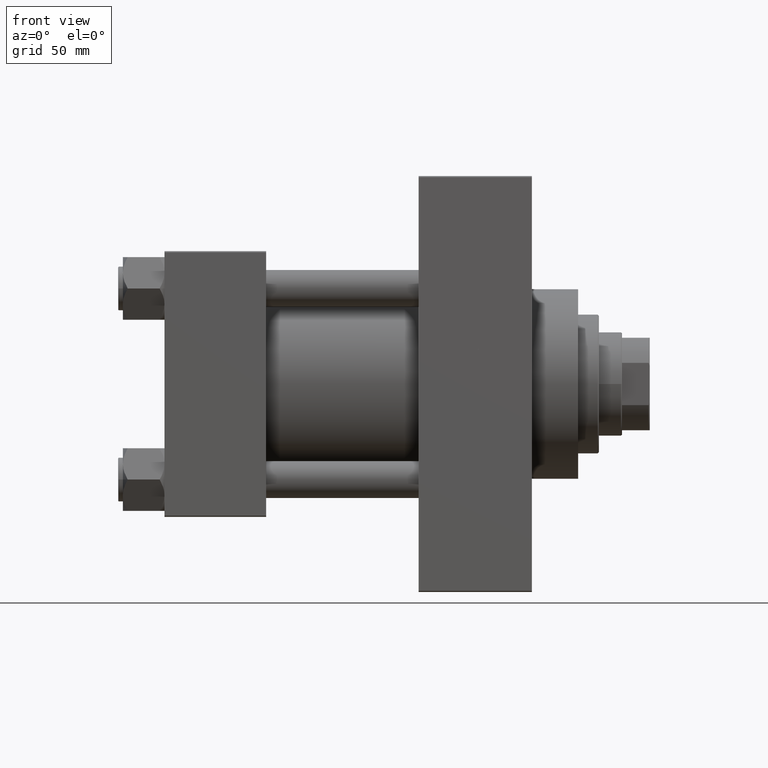
[diagram: clean part render]
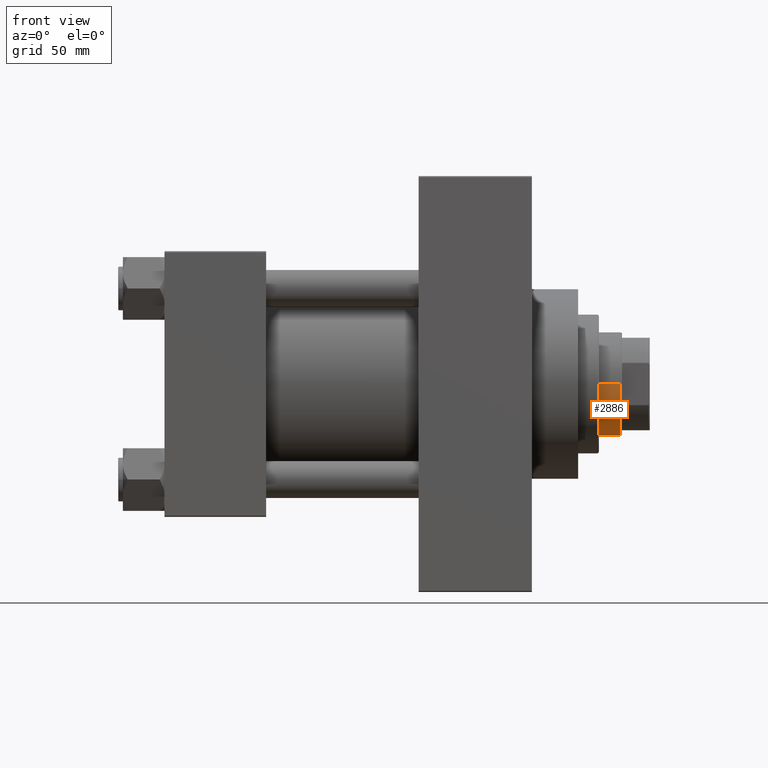
[diagram: same view with one face highlighted and labeled with its STEP entity id]
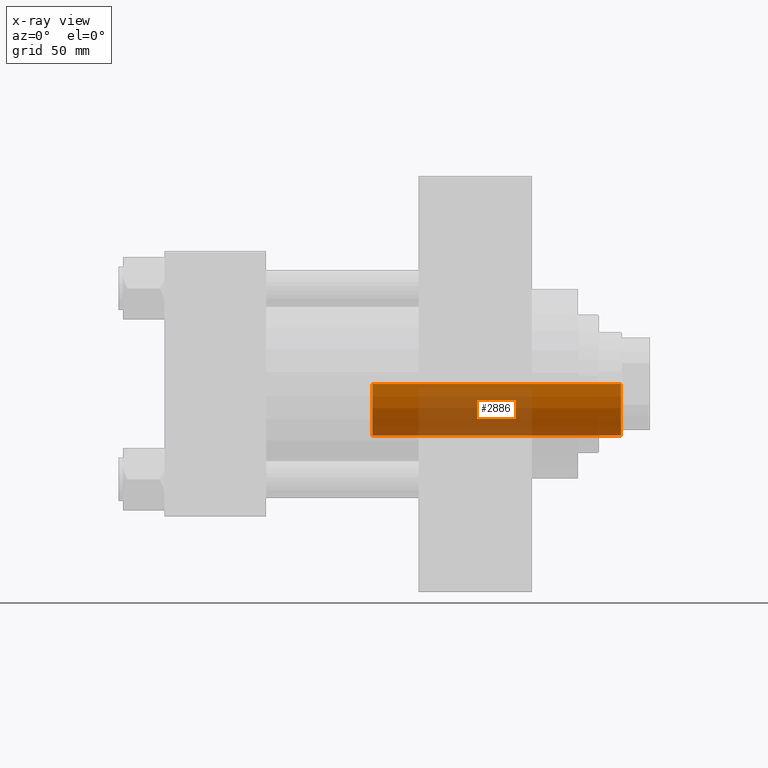
[diagram: x-ray of the same camera — body ghosted, the highlighted face saturated]
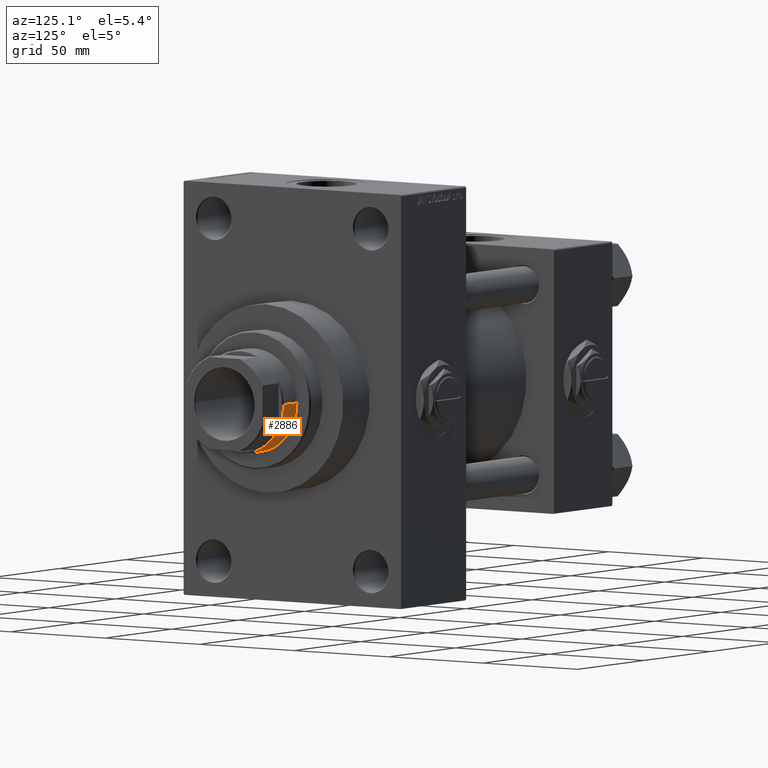
[diagram: same view with one face highlighted and labeled with its STEP entity id]
A machine part, front view. The second image highlights one B-rep face of the part: STEP entity #2886.
The next image is the same camera in x-ray: the body ghosted, the highlighted face saturated — about 42% of this face is hidden behind the body in this view.
A second angle (auxiliary view) of the same face is appended — the face is thin or edge-on in the first view.
In plain terms, the highlighted cylindrical surface (partial cylindrical patch) has radius 22.5 mm, axis along (-1, 0, 0).
Its self-contained STEP definition (entity closure, byte-faithful):
#1466 = EDGE_LOOP ( 'NONE', ( #32361, #29215, #43351, #8168 ) ) ;
#2688 = CARTESIAN_POINT ( 'NONE',  ( -22.50000000000000355, 0.000000000000000000, 154.0000000000000000 ) ) ;
#2724 = EDGE_CURVE ( 'NONE', #10014, #12964, #37972, .T. ) ;
#2886 = ADVANCED_FACE ( 'NONE', ( #21737 ), #36610, .T. ) ;
#7397 = AXIS2_PLACEMENT_3D ( 'NONE', #35364, #27555, #46919 ) ;
#8168 = ORIENTED_EDGE ( 'NONE', *, *, #27846, .F. ) ;
#8366 = CARTESIAN_POINT ( 'NONE',  ( -22.50000000000000355, 0.000000000000000000, 46.00000000000000000 ) ) ;
#10014 = VERTEX_POINT ( 'NONE', #10102 ) ;
#10102 = CARTESIAN_POINT ( 'NONE',  ( -22.50000000000000355, 0.000000000000000000, 153.5000000000000284 ) ) ;
#10418 = VERTEX_POINT ( 'NONE', #46279 ) ;
#11614 = AXIS2_PLACEMENT_3D ( 'NONE', #24049, #44184, #21271 ) ;
#12019 = EDGE_CURVE ( 'NONE', #10418, #33588, #42198, .T. ) ;
#12964 = VERTEX_POINT ( 'NONE', #34714 ) ;
#13676 = DIRECTION ( 'NONE',  ( -1.000000000000000000, 0.000000000000000000, 0.000000000000000000 ) ) ;
#16960 = LINE ( 'NONE', #44141, #38045 ) ;
#17204 = DIRECTION ( 'NONE',  ( -0.000000000000000000, -0.000000000000000000, -1.000000000000000000 ) ) ;
#17468 = DIRECTION ( 'NONE',  ( -0.000000000000000000, -0.000000000000000000, -1.000000000000000000 ) ) ;
#17962 = CARTESIAN_POINT ( 'NONE',  ( 0.000000000000000000, 0.000000000000000000, 154.0000000000000000 ) ) ;
#18669 = AXIS2_PLACEMENT_3D ( 'NONE', #17962, #17468, #13676 ) ;
#21271 = DIRECTION ( 'NONE',  ( 1.000000000000000000, 0.000000000000000000, 0.000000000000000000 ) ) ;
#21737 = FACE_OUTER_BOUND ( 'NONE', #1466, .T. ) ;
#21844 = LINE ( 'NONE', #2688, #23307 ) ;
#23307 = VECTOR ( 'NONE', #40492, 1000.000000000000000 ) ;
#24049 = CARTESIAN_POINT ( 'NONE',  ( 0.000000000000000000, 0.000000000000000000, 46.00000000000000000 ) ) ;
#27555 = DIRECTION ( 'NONE',  ( 0.000000000000000000, 0.000000000000000000, -1.000000000000000000 ) ) ;
#27846 = EDGE_CURVE ( 'NONE', #10014, #33588, #21844, .T. ) ;
#29215 = ORIENTED_EDGE ( 'NONE', *, *, #37698, .T. ) ;
#32361 = ORIENTED_EDGE ( 'NONE', *, *, #2724, .T. ) ;
#33588 = VERTEX_POINT ( 'NONE', #8366 ) ;
#34714 = CARTESIAN_POINT ( 'NONE',  ( 22.50000000000000355, 2.755455298081545172E-15, 153.5000000000000284 ) ) ;
#35364 = CARTESIAN_POINT ( 'NONE',  ( 0.000000000000000000, 0.000000000000000000, 153.5000000000000284 ) ) ;
#36610 = CYLINDRICAL_SURFACE ( 'NONE', #18669, 22.50000000000000355 ) ;
#37698 = EDGE_CURVE ( 'NONE', #12964, #10418, #16960, .T. ) ;
#37972 = CIRCLE ( 'NONE', #7397, 22.50000000000000355 ) ;
#38045 = VECTOR ( 'NONE', #17204, 1000.000000000000000 ) ;
#40492 = DIRECTION ( 'NONE',  ( -0.000000000000000000, -0.000000000000000000, -1.000000000000000000 ) ) ;
#42198 = CIRCLE ( 'NONE', #11614, 22.50000000000000355 ) ;
#43351 = ORIENTED_EDGE ( 'NONE', *, *, #12019, .T. ) ;
#44141 = CARTESIAN_POINT ( 'NONE',  ( 22.50000000000000355, 2.755455298081545172E-15, 154.0000000000000000 ) ) ;
#44184 = DIRECTION ( 'NONE',  ( 0.000000000000000000, 0.000000000000000000, 1.000000000000000000 ) ) ;
#46279 = CARTESIAN_POINT ( 'NONE',  ( 22.50000000000000355, 2.755455298081545172E-15, 46.00000000000000000 ) ) ;
#46919 = DIRECTION ( 'NONE',  ( 1.000000000000000000, 0.000000000000000000, 0.000000000000000000 ) ) ;